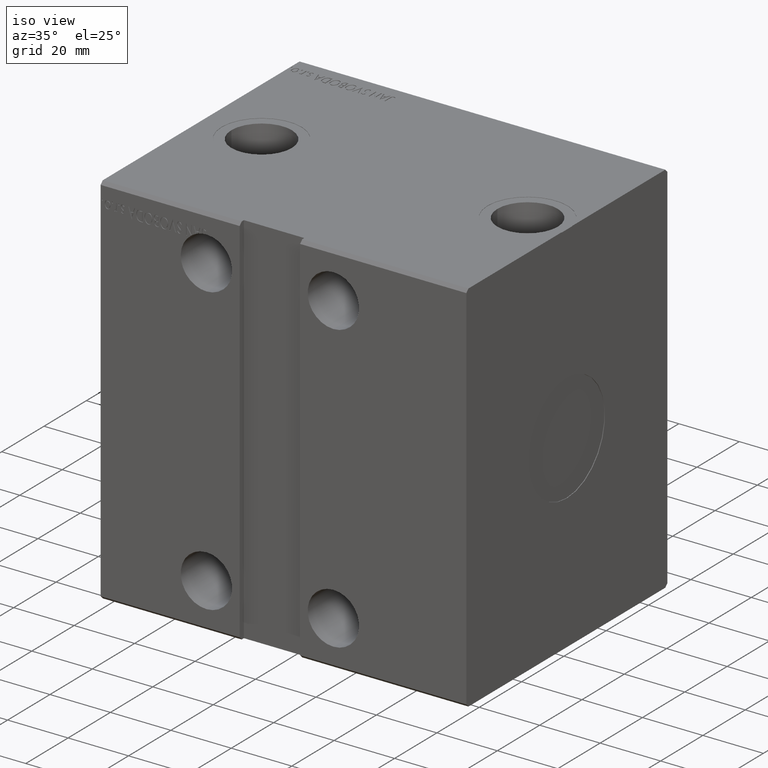
[diagram: clean part render]
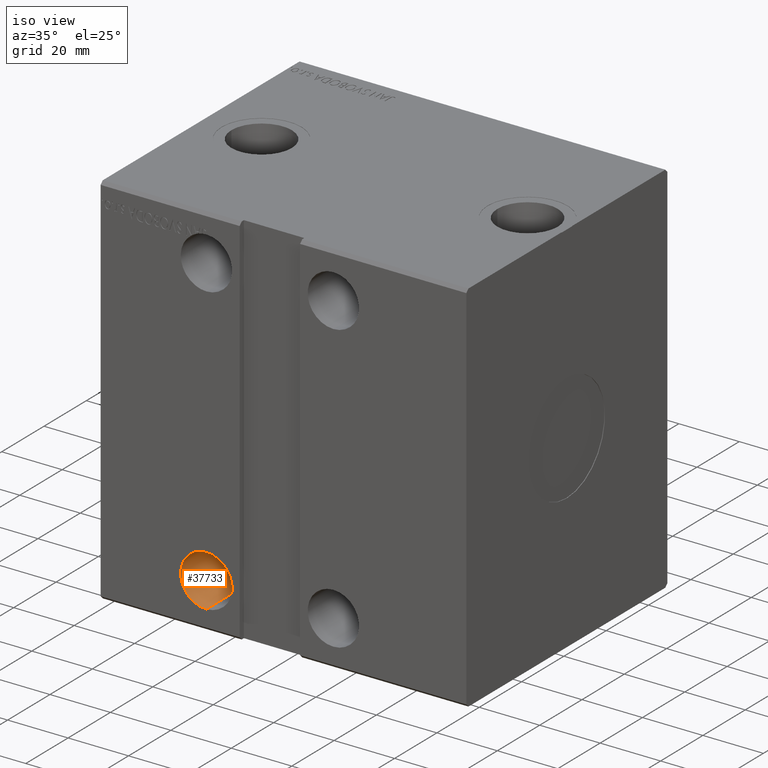
[diagram: same view with one face highlighted and labeled with its STEP entity id]
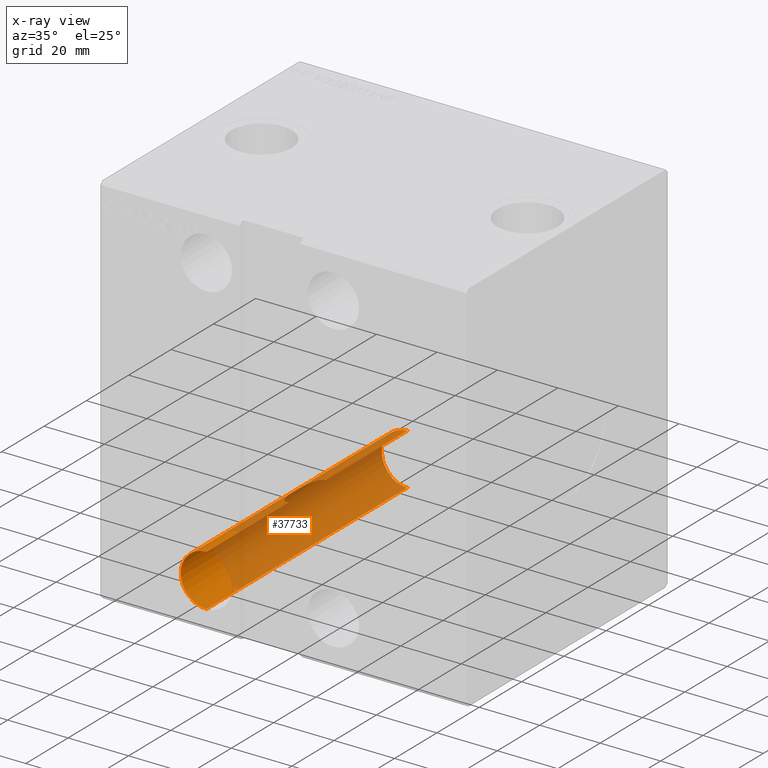
[diagram: x-ray of the same camera — body ghosted, the highlighted face saturated]
A machine part, iso view. The second image highlights one B-rep face of the part: STEP entity #37733.
The next image is the same camera in x-ray: the body ghosted, the highlighted face saturated — about 81% of this face is hidden behind the body in this view.
In plain terms, the highlighted cylindrical surface (edge-blend (fillet) strip) has radius 8.5 mm, axis along (-0, -1, -0).
Its self-contained STEP definition (entity closure, byte-faithful):
#15 = DIRECTION ( 'NONE',  ( -0.000000000000000000, 1.000000000000000000, 1.128275431529630729E-16 ) ) ;
#24 = CARTESIAN_POINT ( 'NONE',  ( 34.88947585469833257, -8.888194417315560258, -39.00000000000000711 ) ) ;
#300 = VERTEX_POINT ( 'NONE', #10181 ) ;
#490 = VECTOR ( 'NONE', #27823, 1000.000000000000000 ) ;
#672 = LINE ( 'NONE', #10976, #42105 ) ;
#1189 = CARTESIAN_POINT ( 'NONE',  ( 34.13479476889374098, 8.704262351708150547, -39.04153279242975572 ) ) ;
#1474 = ORIENTED_EDGE ( 'NONE', *, *, #12574, .F. ) ;
#1574 = VECTOR ( 'NONE', #13147, 1000.000000000000000 ) ;
#1647 = LINE ( 'NONE', #40677, #490 ) ;
#1816 = CARTESIAN_POINT ( 'NONE',  ( 31.80138507283863092, 47.50000000000003553, -55.37520555590396043 ) ) ;
#2263 = VERTEX_POINT ( 'NONE', #27941 ) ;
#2395 = DIRECTION ( 'NONE',  ( -8.163404592832032979E-16, 0.000000000000000000, -1.000000000000000000 ) ) ;
#2410 = DIRECTION ( 'NONE',  ( -0.000000000000000000, -1.000000000000000000, -5.507058653894625853E-17 ) ) ;
#2454 = EDGE_CURVE ( 'NONE', #19415, #2263, #8707, .T. ) ;
#2550 = AXIS2_PLACEMENT_3D ( 'NONE', #8138, #24244, #40103 ) ;
#2604 = CARTESIAN_POINT ( 'NONE',  ( 35.00000000000000711, 47.50000000000001421, -47.50000000000000711 ) ) ;
#2827 = CARTESIAN_POINT ( 'NONE',  ( 32.58846641846847092, -7.192721627606849744, -39.34846814882652666 ) ) ;
#3047 = CARTESIAN_POINT ( 'NONE',  ( 34.55843943076691716, -8.840818478083484422, -39.01077160859178150 ) ) ;
#3186 = EDGE_CURVE ( 'NONE', #9199, #30968, #8849, .T. ) ;
#3231 = AXIS2_PLACEMENT_3D ( 'NONE', #16119, #7679, #32639 ) ;
#3251 = CARTESIAN_POINT ( 'NONE',  ( 31.84355187867361892, -5.612572045631544881, -39.60652766093457444 ) ) ;
#3373 = VERTEX_POINT ( 'NONE', #13315 ) ;
#3401 = DIRECTION ( 'NONE',  ( -0.000000000000000000, -1.000000000000000000, -5.507058653894625853E-17 ) ) ;
#3462 = CARTESIAN_POINT ( 'NONE',  ( 31.06814962652908818, -1.752904412375364096, -39.96398568636999471 ) ) ;
#3510 = EDGE_CURVE ( 'NONE', #9199, #15699, #25183, .T. ) ;
#3534 = CARTESIAN_POINT ( 'NONE',  ( 35.00000000000000711, 47.50000000000003553, -39.00000000000000711 ) ) ;
#3591 = CARTESIAN_POINT ( 'NONE',  ( 29.99263530898690888, 47.30000000000001137, -54.36850048054125750 ) ) ;
#3774 = EDGE_CURVE ( 'NONE', #34803, #29983, #1647, .T. ) ;
#3827 = EDGE_CURVE ( 'NONE', #300, #3373, #38855, .T. ) ;
#3860 = CARTESIAN_POINT ( 'NONE',  ( 32.51565350613332583, 47.29999999999999716, -55.62883893913593170 ) ) ;
#4221 = CARTESIAN_POINT ( 'NONE',  ( 35.00000000000000711, 47.50000000000003553, -47.50000000000000711 ) ) ;
#4624 = CARTESIAN_POINT ( 'NONE',  ( 31.84034224388072332, 5.603247014670987625, -39.60782839838529412 ) ) ;
#4641 = FACE_OUTER_BOUND ( 'NONE', #22577, .T. ) ;
#4652 = ORIENTED_EDGE ( 'NONE', *, *, #3774, .F. ) ;
#4831 = CARTESIAN_POINT ( 'NONE',  ( 31.27718047947745816, 3.482741801787012204, -39.85758575065943177 ) ) ;
#5044 = CARTESIAN_POINT ( 'NONE',  ( 31.05225755694951317, 1.746770409802224311, -39.97130752758187811 ) ) ;
#5064 = ORIENTED_EDGE ( 'NONE', *, *, #24821, .T. ) ;
#6042 = EDGE_CURVE ( 'NONE', #8183, #41754, #41635, .T. ) ;
#6047 = CARTESIAN_POINT ( 'NONE',  ( 31.10980483652023310, -2.193571123626138153, -39.94219404680328722 ) ) ;
#6263 = CARTESIAN_POINT ( 'NONE',  ( 33.93976231450151460, -8.601702186180727239, -39.06439139068070432 ) ) ;
#6621 = CARTESIAN_POINT ( 'NONE',  ( 35.00000000000000711, 47.50000000000003553, -56.00000000000000711 ) ) ;
#6972 = EDGE_CURVE ( 'NONE', #41865, #28706, #33126, .T. ) ;
#7411 = CARTESIAN_POINT ( 'NONE',  ( 35.00000000000000711, 47.50000000000003553, -47.50000000000000711 ) ) ;
#7444 = ORIENTED_EDGE ( 'NONE', *, *, #28453, .F. ) ;
#7679 = DIRECTION ( 'NONE',  ( -1.711874210006961910E-12, -1.000000000000000000, 8.106832115813578724E-16 ) ) ;
#7847 = CARTESIAN_POINT ( 'NONE',  ( 33.09640844770643753, 7.890292373783818647, -39.21440103295969948 ) ) ;
#8028 = DIRECTION ( 'NONE',  ( 0.000000000000000000, 0.000000000000000000, -1.000000000000000000 ) ) ;
#8049 = CARTESIAN_POINT ( 'NONE',  ( 29.99263530898690888, 47.50000000000003553, -54.36850048054125750 ) ) ;
#8052 = CARTESIAN_POINT ( 'NONE',  ( 31.99184554558158311, 6.011549350863598207, -39.54773088821401217 ) ) ;
#8138 = CARTESIAN_POINT ( 'NONE',  ( 35.00000000000000711, 47.50000000000003553, -47.50000000000000711 ) ) ;
#8183 = VERTEX_POINT ( 'NONE', #9775 ) ;
#8238 = CARTESIAN_POINT ( 'NONE',  ( 35.00000000000000711, 47.30000000000001137, -47.50000000000000711 ) ) ;
#8447 = AXIS2_PLACEMENT_3D ( 'NONE', #15108, #40647, #38051 ) ;
#8548 = ORIENTED_EDGE ( 'NONE', *, *, #3510, .T. ) ;
#8707 = CIRCLE ( 'NONE', #3231, 8.500000000000003553 ) ;
#8820 = ORIENTED_EDGE ( 'NONE', *, *, #21340, .F. ) ;
#8849 = LINE ( 'NONE', #35003, #29300 ) ;
#8949 = CARTESIAN_POINT ( 'NONE',  ( 32.18849716190361221, 47.30000000000001137, -55.52156168033232575 ) ) ;
#9008 = ORIENTED_EDGE ( 'NONE', *, *, #38124, .T. ) ;
#9199 = VERTEX_POINT ( 'NONE', #40620 ) ;
#9487 = CARTESIAN_POINT ( 'NONE',  ( 31.01334068797262589, -0.8751396838789432531, -39.99283631293248931 ) ) ;
#9775 = CARTESIAN_POINT ( 'NONE',  ( 35.00000000000000711, -47.50000000000000711, -39.00000000000000711 ) ) ;
#9997 = DIRECTION ( 'NONE',  ( -0.000000000000000000, 1.000000000000000000, 5.507058653894625853E-17 ) ) ;
#10069 = ORIENTED_EDGE ( 'NONE', *, *, #16987, .T. ) ;
#10181 = CARTESIAN_POINT ( 'NONE',  ( 35.00000000000000711, 47.50000000000003553, -56.00000000000000711 ) ) ;
#10434 = EDGE_CURVE ( 'NONE', #13543, #15699, #32631, .T. ) ;
#10470 = DIRECTION ( 'NONE',  ( 0.000000000000000000, 0.000000000000000000, 1.000000000000000000 ) ) ;
#10976 = CARTESIAN_POINT ( 'NONE',  ( 32.18849716190361221, 47.50000000000003553, -55.52156168033232575 ) ) ;
#11135 = EDGE_CURVE ( 'NONE', #22384, #41865, #19547, .T. ) ;
#11641 = CARTESIAN_POINT ( 'NONE',  ( 35.00000000000000711, -47.50000000000000711, -56.00000000000002132 ) ) ;
#11833 = CARTESIAN_POINT ( 'NONE',  ( 31.54316470523343341, 47.29999999999999716, -55.26532611967174802 ) ) ;
#12062 = CARTESIAN_POINT ( 'NONE',  ( 35.00000000000000711, 47.50000000000003553, -39.00000000000000711 ) ) ;
#12515 = CARTESIAN_POINT ( 'NONE',  ( 32.51565350613332583, 47.50000000000003553, -55.62883893913593170 ) ) ;
#12574 = EDGE_CURVE ( 'NONE', #30799, #34816, #35319, .T. ) ;
#12612 = CIRCLE ( 'NONE', #39297, 8.500000000000000000 ) ;
#12912 = CARTESIAN_POINT ( 'NONE',  ( 32.37097286816661068, -6.812983839052358270, -39.41599220215405808 ) ) ;
#13147 = DIRECTION ( 'NONE',  ( 0.000000000000000000, 1.000000000000000000, 5.507058653894625853E-17 ) ) ;
#13233 = CARTESIAN_POINT ( 'NONE',  ( 35.00000000000000711, 47.29999999999999716, -47.50000000000000711 ) ) ;
#13290 = AXIS2_PLACEMENT_3D ( 'NONE', #39044, #23402, #29845 ) ;
#13315 = CARTESIAN_POINT ( 'NONE',  ( 33.83333333333333570, 47.50000000000003553, -55.91955396021006663 ) ) ;
#13543 = VERTEX_POINT ( 'NONE', #25979 ) ;
#13756 = VECTOR ( 'NONE', #20453, 1000.000000000000000 ) ;
#13762 = EDGE_CURVE ( 'NONE', #34377, #19415, #37090, .T. ) ;
#14008 = CARTESIAN_POINT ( 'NONE',  ( 32.51565350613332583, 47.50000000000003553, -55.62883893913593170 ) ) ;
#14269 = CARTESIAN_POINT ( 'NONE',  ( 33.93509665507554018, 8.599058470145475752, -39.06497553941076717 ) ) ;
#14270 = EDGE_CURVE ( 'NONE', #14453, #34816, #28126, .T. ) ;
#14399 = ORIENTED_EDGE ( 'NONE', *, *, #6972, .T. ) ;
#14453 = VERTEX_POINT ( 'NONE', #36680 ) ;
#14749 = EDGE_CURVE ( 'NONE', #300, #41754, #20132, .T. ) ;
#14974 = EDGE_CURVE ( 'NONE', #39757, #30330, #20243, .T. ) ;
#15108 = CARTESIAN_POINT ( 'NONE',  ( 35.00000000000000711, 47.50000000000003553, -47.50000000000000711 ) ) ;
#15435 = ORIENTED_EDGE ( 'NONE', *, *, #6042, .T. ) ;
#15699 = VERTEX_POINT ( 'NONE', #21820 ) ;
#15996 = DIRECTION ( 'NONE',  ( 0.000000000000000000, 0.000000000000000000, 1.000000000000000000 ) ) ;
#16076 = ORIENTED_EDGE ( 'NONE', *, *, #38182, .T. ) ;
#16119 = CARTESIAN_POINT ( 'NONE',  ( 35.00000000000000711, 47.29999999999768079, -47.50000000000000711 ) ) ;
#16124 = CARTESIAN_POINT ( 'NONE',  ( 34.77712757299228485, -8.878478442374110102, -39.00221780115114001 ) ) ;
#16227 = DIRECTION ( 'NONE',  ( 0.000000000000000000, 1.000000000000000000, 5.507058653894625853E-17 ) ) ;
#16330 = CARTESIAN_POINT ( 'NONE',  ( 33.10255778544195948, -7.897159810391356949, -39.21301165728718274 ) ) ;
#16393 = ORIENTED_EDGE ( 'NONE', *, *, #3186, .F. ) ;
#16403 = ORIENTED_EDGE ( 'NONE', *, *, #25575, .T. ) ;
#16713 = CIRCLE ( 'NONE', #13290, 8.500000000000000000 ) ;
#16987 = EDGE_CURVE ( 'NONE', #13543, #29983, #26138, .T. ) ;
#17696 = CARTESIAN_POINT ( 'NONE',  ( 31.45100102384058260, 4.353716322937175143, -39.77123262300046491 ) ) ;
#17757 = ORIENTED_EDGE ( 'NONE', *, *, #35526, .T. ) ;
#17906 = CARTESIAN_POINT ( 'NONE',  ( 31.00000000000001776, 4.320547275526808476E-15, -40.00000000000000000 ) ) ;
#17960 = AXIS2_PLACEMENT_3D ( 'NONE', #13233, #30385, #20514 ) ;
#18119 = CARTESIAN_POINT ( 'NONE',  ( 35.00000000000000711, 8.888194417315572693, -39.00000000000000711 ) ) ;
#18328 = CARTESIAN_POINT ( 'NONE',  ( 33.40469418568827820, 8.205957392806936923, -39.14956226300645170 ) ) ;
#19131 = CARTESIAN_POINT ( 'NONE',  ( 31.45160911352975930, -4.357593458878264769, -39.77088599141658420 ) ) ;
#19347 = CARTESIAN_POINT ( 'NONE',  ( 34.13859483857217469, -8.705886128782134747, -39.04116947103749169 ) ) ;
#19415 = VERTEX_POINT ( 'NONE', #21729 ) ;
#19547 = LINE ( 'NONE', #25984, #33537 ) ;
#19791 = CARTESIAN_POINT ( 'NONE',  ( 33.83333333333333570, 47.50000000000003553, -55.91955396021006663 ) ) ;
#20130 = CARTESIAN_POINT ( 'NONE',  ( 35.00000000000000711, -47.50000000000000711, -47.50000000000001421 ) ) ;
#20132 = LINE ( 'NONE', #6621, #30913 ) ;
#20243 = LINE ( 'NONE', #14008, #13756 ) ;
#20453 = DIRECTION ( 'NONE',  ( 0.000000000000000000, 1.000000000000000000, 5.507058653894625853E-17 ) ) ;
#20514 = DIRECTION ( 'NONE',  ( 4.081702296416016786E-15, 0.000000000000000000, -1.000000000000000000 ) ) ;
#20814 = CARTESIAN_POINT ( 'NONE',  ( 33.56410256410256920, 47.50000000000003553, -55.87783973071717725 ) ) ;
#20931 = CARTESIAN_POINT ( 'NONE',  ( 32.57256012174860160, 7.192548791584959744, -39.34966693918345015 ) ) ;
#21081 = B_SPLINE_CURVE_WITH_KNOTS ( 'NONE', 3,
 ( #22351, #35420, #9487, #3462, #6047, #32642, #19131, #3251, #26210, #39484, #12912, #2827, #29639, #42066, #16330, #25790, #29427, #6263, #19347, #32431, #3047, #16124, #24, #29220 ),
 .UNSPECIFIED., .F., .F.,
 ( 4, 2, 2, 2, 2, 2, 2, 2, 2, 2, 2, 4 ),
 ( 0.02085609626494409549, 0.02215417883218043574, 0.02345226139941677598, 0.02604842653388945647, 0.02734650910112579672, 0.02799555038474397378, 0.02864459166836214737, 0.02929363295198032791, 0.02994267423559850150, 0.03059171551921668203, 0.03091623616102576882, 0.03124075680283485909 ),
 .UNSPECIFIED. ) ;
#21288 = VECTOR ( 'NONE', #33888, 1000.000000000000000 ) ;
#21340 = EDGE_CURVE ( 'NONE', #2263, #3373, #35242, .T. ) ;
#21522 = ORIENTED_EDGE ( 'NONE', *, *, #10434, .F. ) ;
#21729 = CARTESIAN_POINT ( 'NONE',  ( 33.56410256410256920, 47.30000000000013927, -55.87783973071717725 ) ) ;
#21820 = CARTESIAN_POINT ( 'NONE',  ( 30.28846153846154010, 47.50000000000003553, -54.57470178349899470 ) ) ;
#22005 = ORIENTED_EDGE ( 'NONE', *, *, #14749, .F. ) ;
#22070 = CIRCLE ( 'NONE', #17960, 8.500000000000000000 ) ;
#22351 = CARTESIAN_POINT ( 'NONE',  ( 31.00000000000001776, 4.320547275526808476E-15, -40.00000000000000000 ) ) ;
#22384 = VERTEX_POINT ( 'NONE', #12062 ) ;
#22523 = CARTESIAN_POINT ( 'NONE',  ( 31.00000000000001776, 4.320547275526808476E-15, -40.00000000000000000 ) ) ;
#22577 = EDGE_LOOP ( 'NONE', ( #5064, #32127, #14399, #9008, #38118, #15435, #22005, #27131, #8820, #42193, #38071, #16076, #41180, #17757, #7444, #33397, #1474, #16403, #16393, #8548, #21522, #10069, #4652 ) ) ;
#23402 = DIRECTION ( 'NONE',  ( 0.000000000000000000, 1.000000000000000000, -0.000000000000000000 ) ) ;
#24147 = CARTESIAN_POINT ( 'NONE',  ( 34.77886755181009448, 8.888194417315562035, -39.00000000000000711 ) ) ;
#24244 = DIRECTION ( 'NONE',  ( -0.000000000000000000, 1.000000000000000000, 5.507058653894625853E-17 ) ) ;
#24755 = AXIS2_PLACEMENT_3D ( 'NONE', #8238, #37809, #8028 ) ;
#24821 = EDGE_CURVE ( 'NONE', #34803, #22384, #12612, .T. ) ;
#25183 = CIRCLE ( 'NONE', #2550, 8.500000000000000000 ) ;
#25542 = CIRCLE ( 'NONE', #8447, 8.500000000000000000 ) ;
#25575 = EDGE_CURVE ( 'NONE', #30799, #30968, #16713, .T. ) ;
#25790 = CARTESIAN_POINT ( 'NONE',  ( 33.40871134463456826, -8.209480517395405741, -39.14881666078687772 ) ) ;
#25979 = CARTESIAN_POINT ( 'NONE',  ( 30.28846153846154010, 47.30000000000001137, -54.57470178349899470 ) ) ;
#25984 = CARTESIAN_POINT ( 'NONE',  ( 35.00000000000000711, 47.50000000000003553, -39.00000000000000711 ) ) ;
#26138 = CIRCLE ( 'NONE', #24755, 8.500000000000000000 ) ;
#26210 = CARTESIAN_POINT ( 'NONE',  ( 31.99713873928057595, -6.024669445494585496, -39.54572412377564916 ) ) ;
#26280 = DIRECTION ( 'NONE',  ( -0.000000000000000000, -1.000000000000000000, -5.507058653894625853E-17 ) ) ;
#26689 = VECTOR ( 'NONE', #40111, 1000.000000000000000 ) ;
#26923 = AXIS2_PLACEMENT_3D ( 'NONE', #4221, #33181, #39813 ) ;
#27052 = CARTESIAN_POINT ( 'NONE',  ( 30.28846153846154010, 47.50000000000003553, -54.57470178349899470 ) ) ;
#27131 = ORIENTED_EDGE ( 'NONE', *, *, #3827, .T. ) ;
#27823 = DIRECTION ( 'NONE',  ( -0.000000000000000000, -1.000000000000000000, -5.507058653894625853E-17 ) ) ;
#27941 = CARTESIAN_POINT ( 'NONE',  ( 33.83333333333333570, 47.29999999999968452, -55.91955396021006663 ) ) ;
#28126 = CIRCLE ( 'NONE', #33598, 8.500000000000000000 ) ;
#28453 = EDGE_CURVE ( 'NONE', #14453, #35401, #672, .T. ) ;
#28706 = VERTEX_POINT ( 'NONE', #22523 ) ;
#28801 = VECTOR ( 'NONE', #16227, 1000.000000000000000 ) ;
#28945 = CARTESIAN_POINT ( 'NONE',  ( 33.56410256410256920, 47.50000000000003553, -55.87783973071717725 ) ) ;
#28996 = DIRECTION ( 'NONE',  ( -0.000000000000000000, -1.000000000000000000, -5.507058653894625853E-17 ) ) ;
#29220 = CARTESIAN_POINT ( 'NONE',  ( 35.00000000000000711, -8.888194417315569140, -39.00000000000000711 ) ) ;
#29300 = VECTOR ( 'NONE', #2410, 1000.000000000000000 ) ;
#29427 = CARTESIAN_POINT ( 'NONE',  ( 33.57710676253643101, -8.354814138639573784, -39.11793752145969449 ) ) ;
#29431 = CARTESIAN_POINT ( 'NONE',  ( 35.00000000000000711, 8.888194417315572693, -39.00000000000000711 ) ) ;
#29639 = CARTESIAN_POINT ( 'NONE',  ( 32.70681071213223134, -7.377903018384849965, -39.31410217644515370 ) ) ;
#29727 = DIRECTION ( 'NONE',  ( 0.000000000000000000, 0.000000000000000000, 1.000000000000000000 ) ) ;
#29845 = DIRECTION ( 'NONE',  ( 2.449021377849609992E-15, 0.000000000000000000, -1.000000000000000000 ) ) ;
#29941 = DIRECTION ( 'NONE',  ( -0.000000000000000000, 1.000000000000000000, 5.507058653894625853E-17 ) ) ;
#29983 = VERTEX_POINT ( 'NONE', #3591 ) ;
#30330 = VERTEX_POINT ( 'NONE', #12515 ) ;
#30385 = DIRECTION ( 'NONE',  ( 0.000000000000000000, 1.000000000000000000, -0.000000000000000000 ) ) ;
#30727 = AXIS2_PLACEMENT_3D ( 'NONE', #20130, #33623, #10470 ) ;
#30790 = CARTESIAN_POINT ( 'NONE',  ( 30.99999999999922906, 0.8750561776355639809, -39.99999999999999289 ) ) ;
#30799 = VERTEX_POINT ( 'NONE', #36563 ) ;
#30913 = VECTOR ( 'NONE', #3401, 1000.000000000000000 ) ;
#30968 = VERTEX_POINT ( 'NONE', #11833 ) ;
#31420 = CARTESIAN_POINT ( 'NONE',  ( 32.95733738069870356, 7.721720542795547537, -39.24802279663229143 ) ) ;
#32127 = ORIENTED_EDGE ( 'NONE', *, *, #11135, .T. ) ;
#32431 = CARTESIAN_POINT ( 'NONE',  ( 34.45171186835197119, -8.813097078647132321, -39.01705603477455497 ) ) ;
#32562 = CARTESIAN_POINT ( 'NONE',  ( 35.00000000000000711, -8.888194417315569140, -39.00000000000000711 ) ) ;
#32631 = LINE ( 'NONE', #27052, #26689 ) ;
#32639 = DIRECTION ( 'NONE',  ( -1.000000000000000000, 1.711865943116876783E-12, 1.959217102279687047E-14 ) ) ;
#32642 = CARTESIAN_POINT ( 'NONE',  ( 31.28018952717590651, -3.500538506391934312, -39.85610001433710181 ) ) ;
#33125 = LINE ( 'NONE', #3534, #41984 ) ;
#33126 = B_SPLINE_CURVE_WITH_KNOTS ( 'NONE', 3,
 ( #18119, #24147, #34625, #1189, #14269, #34413, #18328, #7847, #31420, #20931, #34004, #8052, #4624, #17696, #4831, #5044, #30790, #17906 ),
 .UNSPECIFIED., .F., .F.,
 ( 4, 2, 2, 2, 2, 2, 2, 2, 4 ),
 ( 0.01046234158790427041, 0.01111195125521926078, 0.01176156092253424941, 0.01241117058984923804, 0.01306078025716422841, 0.01435999959179420742, 0.01565921892642418642, 0.01825765759568414096, 0.02085609626494409549 ),
 .UNSPECIFIED. ) ;
#33181 = DIRECTION ( 'NONE',  ( -0.000000000000000000, -1.000000000000000000, -5.507058653894625853E-17 ) ) ;
#33397 = ORIENTED_EDGE ( 'NONE', *, *, #14270, .T. ) ;
#33537 = VECTOR ( 'NONE', #28996, 1000.000000000000000 ) ;
#33598 = AXIS2_PLACEMENT_3D ( 'NONE', #2604, #15, #2395 ) ;
#33601 = CYLINDRICAL_SURFACE ( 'NONE', #26923, 8.500000000000000000 ) ;
#33623 = DIRECTION ( 'NONE',  ( 0.000000000000000000, -1.000000000000000000, -1.692413147294446216E-16 ) ) ;
#33888 = DIRECTION ( 'NONE',  ( -0.000000000000000000, -1.000000000000000000, -5.507058653894625853E-17 ) ) ;
#33916 = DIRECTION ( 'NONE',  ( -0.000000000000000000, -1.000000000000000000, -5.507058653894625853E-17 ) ) ;
#34004 = CARTESIAN_POINT ( 'NONE',  ( 32.35749870789388183, 6.805507322899399192, -39.41886368329797818 ) ) ;
#34377 = VERTEX_POINT ( 'NONE', #28945 ) ;
#34413 = CARTESIAN_POINT ( 'NONE',  ( 33.57214693437431663, 8.350890721141160711, -39.11877739182682490 ) ) ;
#34625 = CARTESIAN_POINT ( 'NONE',  ( 34.55424423128184941, 8.848522382663713159, -39.00909019079055895 ) ) ;
#34803 = VERTEX_POINT ( 'NONE', #8049 ) ;
#34816 = VERTEX_POINT ( 'NONE', #1816 ) ;
#35003 = CARTESIAN_POINT ( 'NONE',  ( 31.54316470523343341, 47.50000000000003553, -55.26532611967174802 ) ) ;
#35242 = LINE ( 'NONE', #19791, #1574 ) ;
#35319 = LINE ( 'NONE', #42169, #28801 ) ;
#35401 = VERTEX_POINT ( 'NONE', #8949 ) ;
#35420 = CARTESIAN_POINT ( 'NONE',  ( 30.99999999999922196, -0.4371452684178733228, -40.00000000000000711 ) ) ;
#35526 = EDGE_CURVE ( 'NONE', #39757, #35401, #22070, .T. ) ;
#36563 = CARTESIAN_POINT ( 'NONE',  ( 31.80138507283863092, 47.30000000000001137, -55.37520555590396043 ) ) ;
#36680 = CARTESIAN_POINT ( 'NONE',  ( 32.18849716190361931, 47.50000000000001421, -55.52156168033233286 ) ) ;
#36801 = AXIS2_PLACEMENT_3D ( 'NONE', #39150, #29941, #15996 ) ;
#37090 = LINE ( 'NONE', #20814, #21288 ) ;
#37733 = ADVANCED_FACE ( 'NONE', ( #4641 ), #33601, .F. ) ;
#37809 = DIRECTION ( 'NONE',  ( -0.000000000000000000, 1.000000000000000000, -0.000000000000000000 ) ) ;
#38051 = DIRECTION ( 'NONE',  ( 0.000000000000000000, 0.000000000000000000, 1.000000000000000000 ) ) ;
#38071 = ORIENTED_EDGE ( 'NONE', *, *, #13762, .F. ) ;
#38118 = ORIENTED_EDGE ( 'NONE', *, *, #39035, .T. ) ;
#38124 = EDGE_CURVE ( 'NONE', #28706, #40187, #21081, .T. ) ;
#38182 = EDGE_CURVE ( 'NONE', #34377, #30330, #25542, .T. ) ;
#38855 = CIRCLE ( 'NONE', #36801, 8.500000000000000000 ) ;
#39035 = EDGE_CURVE ( 'NONE', #40187, #8183, #33125, .T. ) ;
#39044 = CARTESIAN_POINT ( 'NONE',  ( 35.00000000000000711, 47.29999999999999716, -47.50000000000000711 ) ) ;
#39150 = CARTESIAN_POINT ( 'NONE',  ( 35.00000000000000711, 47.50000000000003553, -47.50000000000000711 ) ) ;
#39297 = AXIS2_PLACEMENT_3D ( 'NONE', #7411, #9997, #29727 ) ;
#39484 = CARTESIAN_POINT ( 'NONE',  ( 32.27182239767302008, -6.618623539690005053, -39.44913252582586694 ) ) ;
#39757 = VERTEX_POINT ( 'NONE', #3860 ) ;
#39813 = DIRECTION ( 'NONE',  ( 0.000000000000000000, 0.000000000000000000, -1.000000000000000000 ) ) ;
#40103 = DIRECTION ( 'NONE',  ( 0.000000000000000000, 0.000000000000000000, 1.000000000000000000 ) ) ;
#40111 = DIRECTION ( 'NONE',  ( 0.000000000000000000, 1.000000000000000000, 5.507058653894625853E-17 ) ) ;
#40187 = VERTEX_POINT ( 'NONE', #32562 ) ;
#40620 = CARTESIAN_POINT ( 'NONE',  ( 31.54316470523343341, 47.50000000000003553, -55.26532611967174802 ) ) ;
#40647 = DIRECTION ( 'NONE',  ( -0.000000000000000000, 1.000000000000000000, 5.507058653894625853E-17 ) ) ;
#40677 = CARTESIAN_POINT ( 'NONE',  ( 29.99263530898690888, 47.50000000000003553, -54.36850048054125750 ) ) ;
#41180 = ORIENTED_EDGE ( 'NONE', *, *, #14974, .F. ) ;
#41635 = CIRCLE ( 'NONE', #30727, 8.500000000000007105 ) ;
#41754 = VERTEX_POINT ( 'NONE', #11641 ) ;
#41865 = VERTEX_POINT ( 'NONE', #29431 ) ;
#41984 = VECTOR ( 'NONE', #26280, 1000.000000000000000 ) ;
#42066 = CARTESIAN_POINT ( 'NONE',  ( 32.96368527018284311, -7.729691225309598401, -39.24645151411823463 ) ) ;
#42105 = VECTOR ( 'NONE', #33916, 1000.000000000000000 ) ;
#42169 = CARTESIAN_POINT ( 'NONE',  ( 31.80138507283863092, 47.50000000000003553, -55.37520555590396043 ) ) ;
#42193 = ORIENTED_EDGE ( 'NONE', *, *, #2454, .F. ) ;